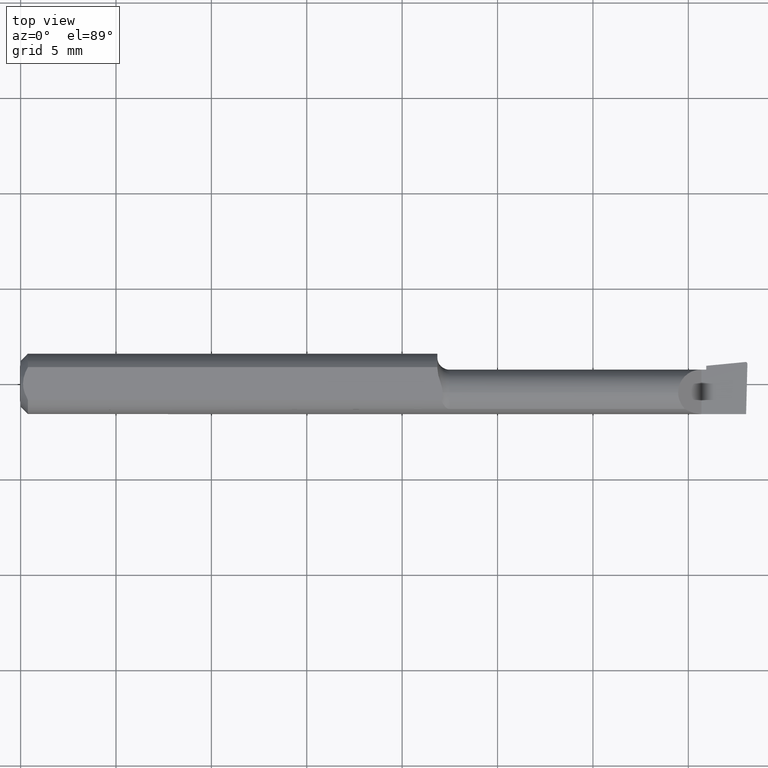
[diagram: clean part render]
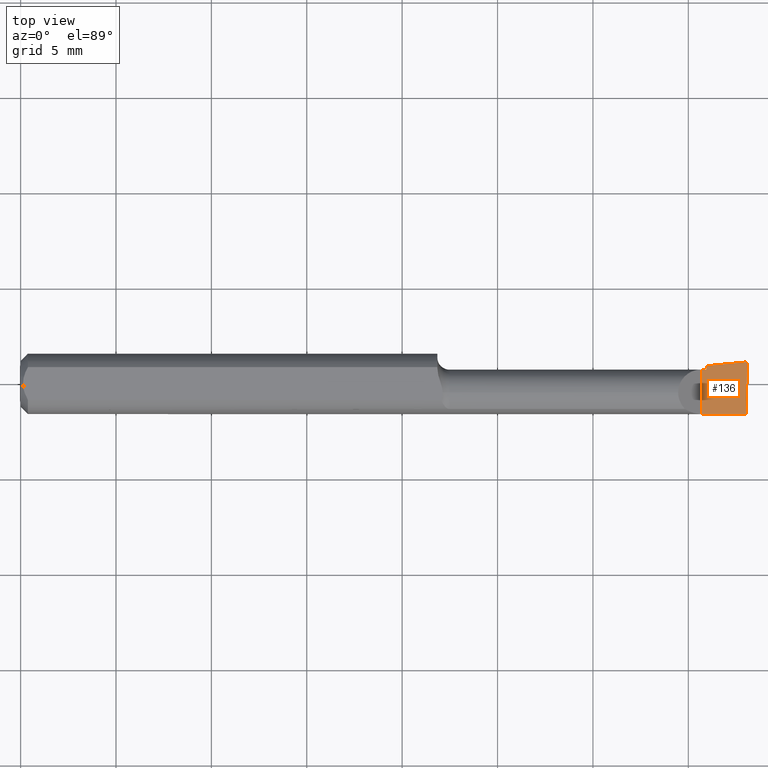
[diagram: same view with one face highlighted and labeled with its STEP entity id]
A machine part, top view. The second image highlights one B-rep face of the part: STEP entity #136.
In plain terms, the highlighted planar face has unit normal (-0, 0, -1).
Its self-contained STEP definition (entity closure, byte-faithful):
#1 = EDGE_LOOP ( 'NONE', ( #11, #721, #91, #776, #666, #747, #256, #222 ) ) ;
#11 = ORIENTED_EDGE ( 'NONE', *, *, #765, .T. ) ;
#25 = CARTESIAN_POINT ( 'NONE',  ( 1.405000000000000249, -0.2500000000000000555, 1.163414459189982046E-17 ) ) ;
#28 = CARTESIAN_POINT ( 'NONE',  ( 1.495634880358090335, 0.04522968678441208201, 5.345729797359908772E-19 ) ) ;
#61 = EDGE_CURVE ( 'NONE', #632, #86, #749, .T. ) ;
#86 = VERTEX_POINT ( 'NONE', #421 ) ;
#90 = CARTESIAN_POINT ( 'NONE',  ( 1.405000000000000249, 0.02964999999999991601, 1.163414459189982046E-17 ) ) ;
#91 = ORIENTED_EDGE ( 'NONE', *, *, #695, .T. ) ;
#127 = VERTEX_POINT ( 'NONE', #608 ) ;
#134 = VECTOR ( 'NONE', #648, 39.37007874015748143 ) ;
#136 = ADVANCED_FACE ( 'NONE', ( #631 ), #748, .F. ) ;
#158 = DIRECTION ( 'NONE',  ( -0.0000000000000000000, 1.000000000000000000, -0.0000000000000000000 ) ) ;
#170 = LINE ( 'NONE', #758, #308 ) ;
#180 = EDGE_CURVE ( 'NONE', #478, #399, #193, .T. ) ;
#193 = LINE ( 'NONE', #282, #339 ) ;
#195 = CARTESIAN_POINT ( 'NONE',  ( 1.499880855614020625, 0.04110005946548993955, 2.844601328296306959E-20 ) ) ;
#196 = DIRECTION ( 'NONE',  ( -1.000000000000000000, 0.0000000000000000000, 1.224646799147350495E-16 ) ) ;
#222 = ORIENTED_EDGE ( 'NONE', *, *, #432, .F. ) ;
#227 = VECTOR ( 'NONE', #599, 39.37007874015748143 ) ;
#244 = CARTESIAN_POINT ( 'NONE',  ( 1.415000000000000036, 0.03746543090321039632, 1.856802933193678953E-16 ) ) ;
#245 = VERTEX_POINT ( 'NONE', #603 ) ;
#256 = ORIENTED_EDGE ( 'NONE', *, *, #394, .F. ) ;
#259 = CARTESIAN_POINT ( 'NONE',  ( 1.496007920276503533, 0.04524764111161382746, -3.414809992080329023E-17 ) ) ;
#275 = CARTESIAN_POINT ( 'NONE',  ( 2.249639673992775738E-32, -0.06234999999999999570, 1.836970198721025250E-16 ) ) ;
#278 = EDGE_CURVE ( 'NONE', #383, #245, #571, .T. ) ;
#282 = CARTESIAN_POINT ( 'NONE',  ( 0.8348153170171558335, -0.01839999999999999969, 8.146162928567849885E-17 ) ) ;
#308 = VECTOR ( 'NONE', #644, 39.37007874015748854 ) ;
#318 = EDGE_CURVE ( 'NONE', #245, #478, #626, .T. ) ;
#339 = VECTOR ( 'NONE', #353, 39.37007874015748143 ) ;
#353 = DIRECTION ( 'NONE',  ( 0.9953961983671787417, 0.09584575252022461966, -1.219008768213806398E-16 ) ) ;
#359 = CARTESIAN_POINT ( 'NONE',  ( 1.499880855614020625, 0.04110005946548993955, 2.844601328296306959E-20 ) ) ;
#363 = VECTOR ( 'NONE', #158, 39.37007874015748143 ) ;
#383 = VERTEX_POINT ( 'NONE', #90 ) ;
#394 = EDGE_CURVE ( 'NONE', #593, #383, #400, .T. ) ;
#399 = VERTEX_POINT ( 'NONE', #28 ) ;
#400 = LINE ( 'NONE', #25, #363 ) ;
#420 = CARTESIAN_POINT ( 'NONE',  ( 1.496007920276503533, 0.04524764111161382746, -3.414809992080329023E-17 ) ) ;
#421 = CARTESIAN_POINT ( 'NONE',  ( 1.496007920276503533, 0.04524764111161382746, -3.414809992080329023E-17 ) ) ;
#432 = EDGE_CURVE ( 'NONE', #127, #593, #686, .T. ) ;
#463 = CARTESIAN_POINT ( 'NONE',  ( 1.495759144559524190, 0.04524165206609322143, -1.706315920833534573E-17 ) ) ;
#465 = CARTESIAN_POINT ( 'NONE',  ( 1.495634880358090335, 0.04522968678441208201, 5.345729797359908772E-19 ) ) ;
#475 = VECTOR ( 'NONE', #583, 39.37007874015748143 ) ;
#478 = VERTEX_POINT ( 'NONE', #244 ) ;
#494 = AXIS2_PLACEMENT_3D ( 'NONE', #639, #697, #196 ) ;
#523 = CARTESIAN_POINT ( 'NONE',  ( 1.415000000000000036, -0.2500000000000000555, 1.040949779275248537E-17 ) ) ;
#533 = CARTESIAN_POINT ( 'NONE',  ( 1.495883579913034112, 0.04524764111161382746, -1.707839814407301456E-17 ) ) ;
#571 = LINE ( 'NONE', #715, #227 ) ;
#583 = DIRECTION ( 'NONE',  ( -1.000000000000000000, -0.0000000000000000000, -0.0000000000000000000 ) ) ;
#593 = VERTEX_POINT ( 'NONE', #627 ) ;
#599 = DIRECTION ( 'NONE',  ( 1.000000000000000000, 0.0000000000000000000, 0.0000000000000000000 ) ) ;
#603 = CARTESIAN_POINT ( 'NONE',  ( 1.415000000000000036, 0.02964999999999999927, 1.836970198721026729E-16 ) ) ;
#608 = CARTESIAN_POINT ( 'NONE',  ( 1.497171920470529161, -0.06235000000000005121, 3.552677088412748576E-19 ) ) ;
#612 =( BOUNDED_CURVE ( )  B_SPLINE_CURVE ( 3, ( #420, #533, #463, #465 ),
 .UNSPECIFIED., .F., .T. ) 
 B_SPLINE_CURVE_WITH_KNOTS ( ( 4, 4 ),
 ( 3.511516179717732555, 3.604018710826316418 ),
 .UNSPECIFIED. ) 
 CURVE ( )  GEOMETRIC_REPRESENTATION_ITEM ( )  RATIONAL_B_SPLINE_CURVE ( ( 1.000000000000000000, 0.9992870672494010842, 0.9992870672494010842, 1.000000000000000000 ) ) 
 REPRESENTATION_ITEM ( '' )  );
#626 = LINE ( 'NONE', #523, #134 ) ;
#627 = CARTESIAN_POINT ( 'NONE',  ( 1.405000000000000249, -0.06235000000000005121, 1.163414459189982046E-17 ) ) ;
#631 = FACE_OUTER_BOUND ( 'NONE', #1, .T. ) ;
#632 = VERTEX_POINT ( 'NONE', #195 ) ;
#639 = CARTESIAN_POINT ( 'NONE',  ( 1.500000000000000222, -0.2500000000000000555, 0.0000000000000000000 ) ) ;
#644 = DIRECTION ( 'NONE',  ( 0.02617694830787654220, 0.9996573249755572599, -3.158139334224213540E-18 ) ) ;
#648 = DIRECTION ( 'NONE',  ( 0.0000000000000000000, 1.000000000000000000, 0.0000000000000000000 ) ) ;
#666 = ORIENTED_EDGE ( 'NONE', *, *, #318, .F. ) ;
#686 = LINE ( 'NONE', #275, #475 ) ;
#692 = CARTESIAN_POINT ( 'NONE',  ( 1.498346190944509715, 0.04524764111161382746, -1.737998101579716457E-17 ) ) ;
#695 = EDGE_CURVE ( 'NONE', #86, #399, #612, .T. ) ;
#697 = DIRECTION ( 'NONE',  ( -1.224646799147350495E-16, 0.0000000000000000000, -1.000000000000000000 ) ) ;
#715 = CARTESIAN_POINT ( 'NONE',  ( 2.249639673992775738E-32, 0.02964999999999995764, 1.836970198721025250E-16 ) ) ;
#721 = ORIENTED_EDGE ( 'NONE', *, *, #61, .T. ) ;
#743 = CARTESIAN_POINT ( 'NONE',  ( 1.499944638786159024, 0.04353584053852190688, -1.757573441908511380E-17 ) ) ;
#747 = ORIENTED_EDGE ( 'NONE', *, *, #278, .F. ) ;
#748 = PLANE ( 'NONE',  #494 ) ;
#749 =( BOUNDED_CURVE ( )  B_SPLINE_CURVE ( 3, ( #359, #743, #692, #259 ),
 .UNSPECIFIED., .F., .T. ) 
 B_SPLINE_CURVE_WITH_KNOTS ( ( 4, 4 ),
 ( 1.953092279228472616, 3.511516179717732555 ),
 .UNSPECIFIED. ) 
 CURVE ( )  GEOMETRIC_REPRESENTATION_ITEM ( )  RATIONAL_B_SPLINE_CURVE ( ( 1.000000000000000000, 0.8076450242550405889, 0.8076450242550405889, 1.000000000000000000 ) ) 
 REPRESENTATION_ITEM ( '' )  );
#758 = CARTESIAN_POINT ( 'NONE',  ( 1.492263437268387616, -0.2497974109750948912, 9.474556785672138714E-19 ) ) ;
#765 = EDGE_CURVE ( 'NONE', #127, #632, #170, .T. ) ;
#776 = ORIENTED_EDGE ( 'NONE', *, *, #180, .F. ) ;